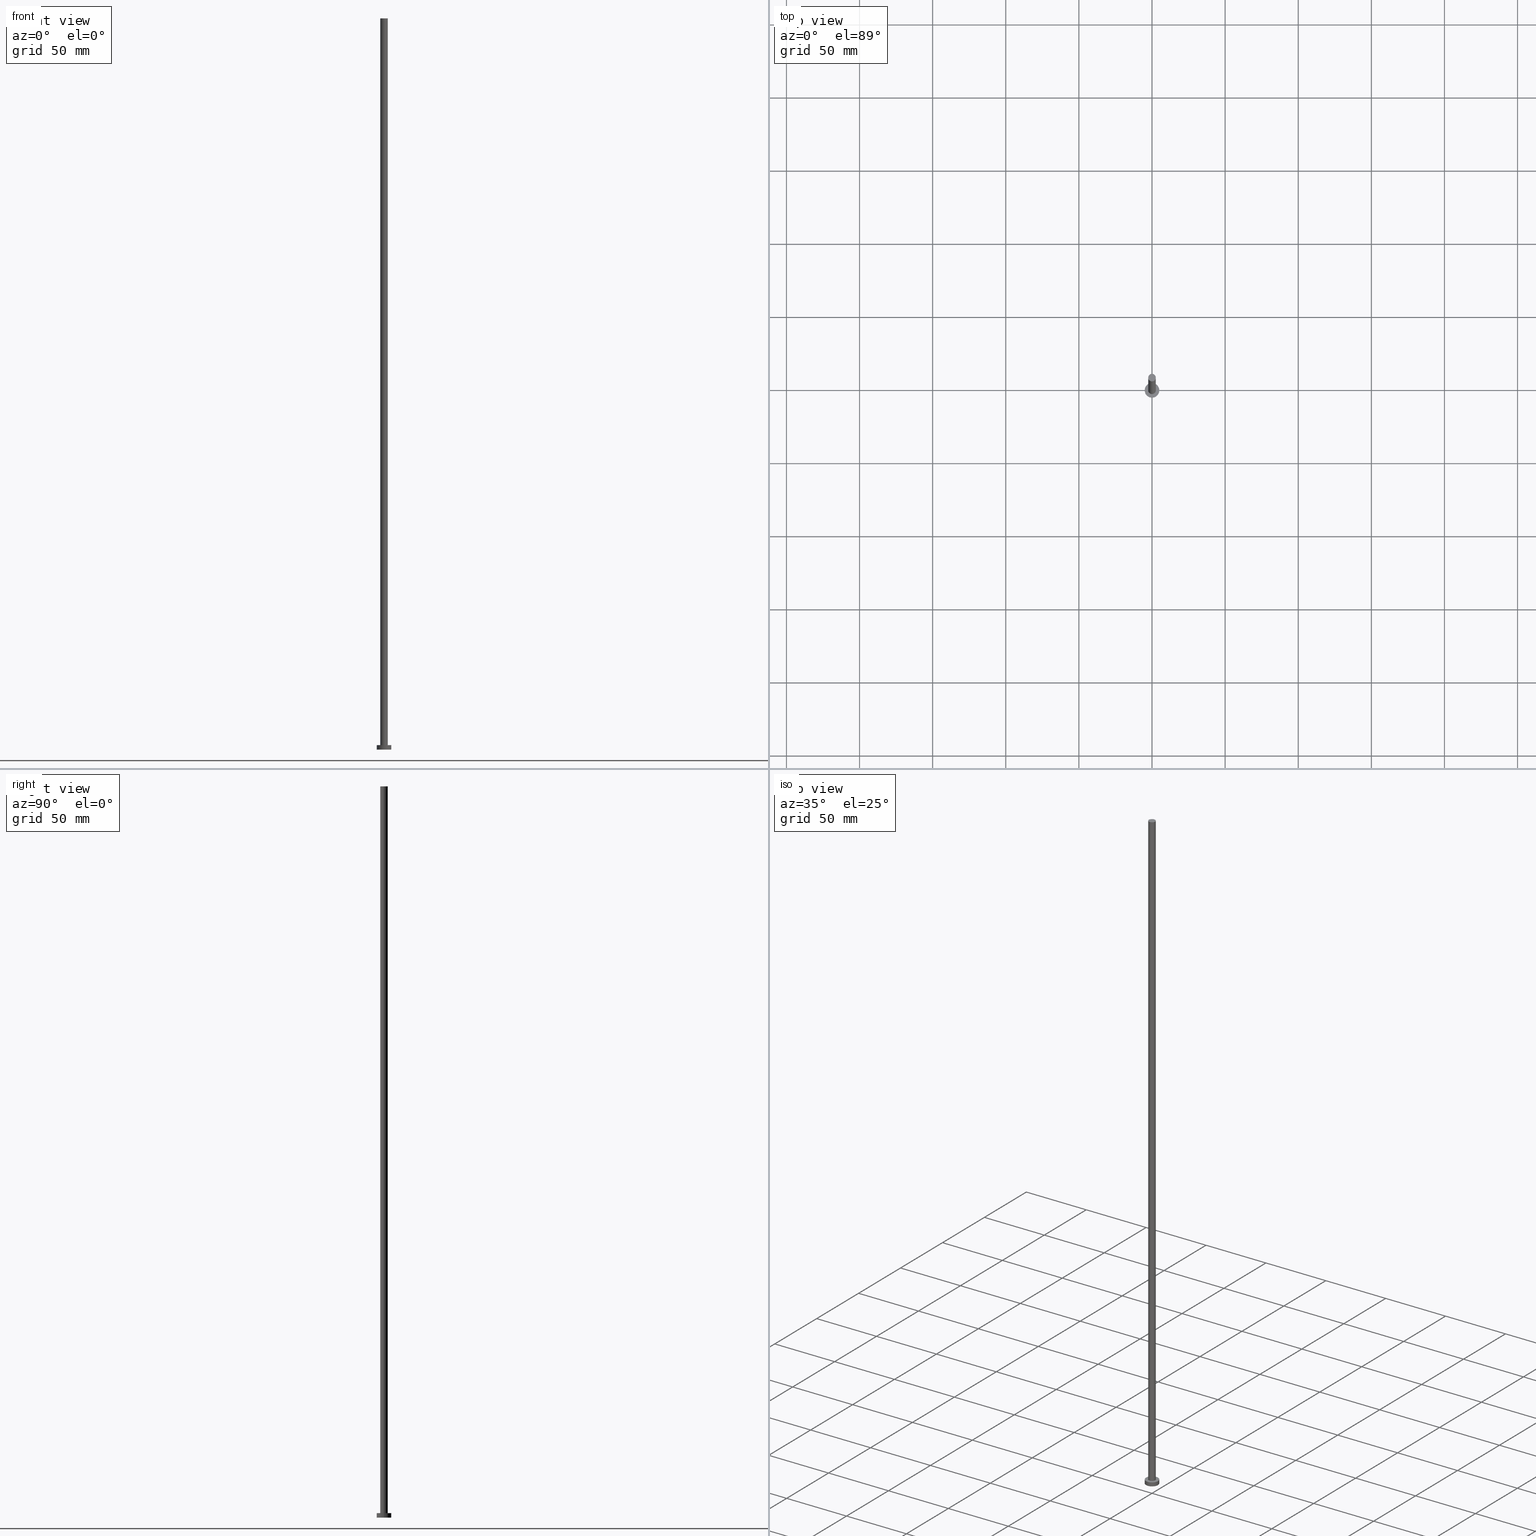
[diagram: canonical four-view strip — front | top / right | iso, engineering-drawing reading convention]
A machine part, canonical four-view strip (front | top / right | iso — engineering-drawing reading convention). The complete STEP part file that produces these views, byte-faithful:
ISO-10303-21;
HEADER;
FILE_DESCRIPTION (( 'STEP AP203' ),
    '1' );
FILE_NAME ('ab43.STEP',
    '2026-02-06T12:40:58',
    ( '' ),
    ( '' ),
    'SwSTEP 2.0',
    'SolidWorks 2019',
    '' );
FILE_SCHEMA (( 'CONFIG_CONTROL_DESIGN' ));
ENDSEC;

DATA;
#1 = ORIENTED_EDGE ( 'NONE', *, *, #49, .T. ) ;
#2 = CIRCLE ( 'NONE', #144, 2.600000000000000089 ) ;
#3 = APPROVAL_PERSON_ORGANIZATION ( #141, #12, #121 ) ;
#4 = DIRECTION ( 'NONE',  ( -0.000000000000000000, -0.000000000000000000, -1.000000000000000000 ) ) ;
#5 = DIRECTION ( 'NONE',  ( 0.000000000000000000, 0.000000000000000000, 1.000000000000000000 ) ) ;
#6 = CARTESIAN_POINT ( 'NONE',  ( 2.600000000000000089, 3.184081677783117698E-16, 500.0000000000000000 ) ) ;
#7 = CIRCLE ( 'NONE', #239, 5.000000000000000000 ) ;
#8 = ADVANCED_FACE ( 'NONE', ( #142 ), #243, .T. ) ;
#9 = CARTESIAN_POINT ( 'NONE',  ( 0.000000000000000000, 0.000000000000000000, 3.000000000000000000 ) ) ;
#10 = DIRECTION ( 'NONE',  ( -0.000000000000000000, -0.000000000000000000, -1.000000000000000000 ) ) ;
#11 = CARTESIAN_POINT ( 'NONE',  ( 0.000000000000000000, 0.000000000000000000, 0.000000000000000000 ) ) ;
#12 = APPROVAL ( #180, 'NEUR�EN�' ) ;
#13 = APPROVAL_ROLE ( '' ) ;
#14 = ORIENTED_EDGE ( 'NONE', *, *, #199, .F. ) ;
#15 = MECHANICAL_CONTEXT ( 'NONE', #209, 'mechanical' ) ;
#16 = PRODUCT_RELATED_PRODUCT_CATEGORY ( 'detail', '', ( #122 ) ) ;
#17 = EDGE_CURVE ( 'NONE', #95, #219, #191, .T. ) ;
#18 = LINE ( 'NONE', #62, #42 ) ;
#19 = DATE_AND_TIME ( #34, #177 ) ;
#20 = DIRECTION ( 'NONE',  ( 1.000000000000000000, 0.000000000000000000, 0.000000000000000000 ) ) ;
#21 = PERSON_AND_ORGANIZATION_ROLE ( 'creator' ) ;
#22 = CARTESIAN_POINT ( 'NONE',  ( 0.000000000000000000, 0.000000000000000000, 500.0000000000000000 ) ) ;
#23 = CARTESIAN_POINT ( 'NONE',  ( 0.000000000000000000, 0.000000000000000000, 3.000000000000000000 ) ) ;
#24 = AXIS2_PLACEMENT_3D ( 'NONE', #179, #58, #138 ) ;
#25 = CC_DESIGN_PERSON_AND_ORGANIZATION_ASSIGNMENT ( #100, #241, ( #210 ) ) ;
#26 = DIRECTION ( 'NONE',  ( -0.000000000000000000, -0.000000000000000000, -1.000000000000000000 ) ) ;
#27 =( LENGTH_UNIT ( ) NAMED_UNIT ( * ) SI_UNIT ( .MILLI., .METRE. ) );
#28 = AXIS2_PLACEMENT_3D ( 'NONE', #9, #164, #20 ) ;
#29 = ORIENTED_EDGE ( 'NONE', *, *, #83, .T. ) ;
#30 = PERSON_AND_ORGANIZATION ( #188, #92 ) ;
#31 = DIRECTION ( 'NONE',  ( 1.000000000000000000, 0.000000000000000000, 0.000000000000000000 ) ) ;
#32 = ORIENTED_EDGE ( 'NONE', *, *, #17, .T. ) ;
#33 = VERTEX_POINT ( 'NONE', #136 ) ;
#34 = CALENDAR_DATE ( 2026, 6, 2 ) ;
#35 = ORIENTED_EDGE ( 'NONE', *, *, #129, .F. ) ;
#36 = COORDINATED_UNIVERSAL_TIME_OFFSET ( 1, 0, .AHEAD. ) ;
#37 = DIRECTION ( 'NONE',  ( -0.000000000000000000, -0.000000000000000000, -1.000000000000000000 ) ) ;
#38 = EDGE_LOOP ( 'NONE', ( #132, #254, #237, #73 ) ) ;
#39 = CARTESIAN_POINT ( 'NONE',  ( -5.000000000000000000, 0.000000000000000000, 3.000000000000000000 ) ) ;
#40 = CALENDAR_DATE ( 2026, 6, 2 ) ;
#41 = DIRECTION ( 'NONE',  ( -0.000000000000000000, -0.000000000000000000, -1.000000000000000000 ) ) ;
#42 = VECTOR ( 'NONE', #37, 1000.000000000000000 ) ;
#43 = DIRECTION ( 'NONE',  ( -1.000000000000000000, 0.000000000000000000, 0.000000000000000000 ) ) ;
#44 =( NAMED_UNIT ( * ) PLANE_ANGLE_UNIT ( ) SI_UNIT ( $, .RADIAN. ) );
#45 = CC_DESIGN_PERSON_AND_ORGANIZATION_ASSIGNMENT ( #203, #21, ( #213 ) ) ;
#46 = PLANE ( 'NONE',  #146 ) ;
#47 = AXIS2_PLACEMENT_3D ( 'NONE', #11, #145, #90 ) ;
#48 = DIRECTION ( 'NONE',  ( -0.000000000000000000, -0.000000000000000000, -1.000000000000000000 ) ) ;
#49 = EDGE_CURVE ( 'NONE', #50, #194, #68, .T. ) ;
#50 = VERTEX_POINT ( 'NONE', #247 ) ;
#51 = LOCAL_TIME ( 13, 40, 58.00000000000000000, #86 ) ;
#52 = EDGE_LOOP ( 'NONE', ( #151, #35, #220, #1 ) ) ;
#53 = ORIENTED_EDGE ( 'NONE', *, *, #183, .F. ) ;
#54 = AXIS2_PLACEMENT_3D ( 'NONE', #216, #218, #31 ) ;
#55 = CARTESIAN_POINT ( 'NONE',  ( 0.000000000000000000, 0.000000000000000000, 500.0000000000000000 ) ) ;
#56 = PERSON_AND_ORGANIZATION_ROLE ( 'classification_officer' ) ;
#57 = CARTESIAN_POINT ( 'NONE',  ( 0.000000000000000000, 0.000000000000000000, 500.0000000000000000 ) ) ;
#58 = DIRECTION ( 'NONE',  ( 0.000000000000000000, 0.000000000000000000, 1.000000000000000000 ) ) ;
#59 = PERSON_AND_ORGANIZATION ( #188, #92 ) ;
#60 = CC_DESIGN_PERSON_AND_ORGANIZATION_ASSIGNMENT ( #30, #118, ( #122 ) ) ;
#61 = FACE_OUTER_BOUND ( 'NONE', #52, .T. ) ;
#62 = CARTESIAN_POINT ( 'NONE',  ( -2.600000000000000089, 0.000000000000000000, 500.0000000000000000 ) ) ;
#63 = DIRECTION ( 'NONE',  ( 1.000000000000000000, 0.000000000000000000, -0.000000000000000000 ) ) ;
#64 = DIRECTION ( 'NONE',  ( 0.000000000000000000, 0.000000000000000000, 1.000000000000000000 ) ) ;
#65 = CC_DESIGN_APPROVAL ( #12, ( #213 ) ) ;
#66 = CARTESIAN_POINT ( 'NONE',  ( 5.000000000000000000, 6.123233995736766282E-16, 3.000000000000000000 ) ) ;
#67 = FACE_BOUND ( 'NONE', #195, .T. ) ;
#68 = CIRCLE ( 'NONE', #28, 2.600000000000000089 ) ;
#69 = ORIENTED_EDGE ( 'NONE', *, *, #49, .F. ) ;
#70 = ORIENTED_EDGE ( 'NONE', *, *, #169, .T. ) ;
#71 =( GEOMETRIC_REPRESENTATION_CONTEXT ( 3 ) GLOBAL_UNCERTAINTY_ASSIGNED_CONTEXT ( ( #147 ) ) GLOBAL_UNIT_ASSIGNED_CONTEXT ( ( #27, #44, #186 ) ) REPRESENTATION_CONTEXT ( 'NONE', 'WORKASPACE' ) );
#72 = EDGE_CURVE ( 'NONE', #219, #95, #7, .T. ) ;
#73 = ORIENTED_EDGE ( 'NONE', *, *, #202, .F. ) ;
#74 = EDGE_LOOP ( 'NONE', ( #53, #70, #29, #108 ) ) ;
#75 = APPROVAL_DATE_TIME ( #19, #93 ) ;
#76 = FACE_OUTER_BOUND ( 'NONE', #149, .T. ) ;
#77 = CC_DESIGN_DATE_AND_TIME_ASSIGNMENT ( #182, #229, ( #173 ) ) ;
#78 = COORDINATED_UNIVERSAL_TIME_OFFSET ( 1, 0, .AHEAD. ) ;
#79 = APPROVAL_PERSON_ORGANIZATION ( #59, #163, #135 ) ;
#80 = CARTESIAN_POINT ( 'NONE',  ( -2.600000000000000089, 0.000000000000000000, 500.0000000000000000 ) ) ;
#81 = PERSON_AND_ORGANIZATION_ROLE ( 'design_supplier' ) ;
#82 = DIRECTION ( 'NONE',  ( 0.000000000000000000, 0.000000000000000000, 1.000000000000000000 ) ) ;
#83 = EDGE_CURVE ( 'NONE', #194, #50, #157, .T. ) ;
#84 = DIRECTION ( 'NONE',  ( 1.000000000000000000, 0.000000000000000000, 0.000000000000000000 ) ) ;
#85 = AXIS2_PLACEMENT_3D ( 'NONE', #105, #41, #184 ) ;
#86 = COORDINATED_UNIVERSAL_TIME_OFFSET ( 1, 0, .AHEAD. ) ;
#87 = VECTOR ( 'NONE', #48, 1000.000000000000000 ) ;
#88 = EDGE_LOOP ( 'NONE', ( #116, #253 ) ) ;
#89 = DATE_AND_TIME ( #246, #94 ) ;
#90 = DIRECTION ( 'NONE',  ( 1.000000000000000000, 0.000000000000000000, 0.000000000000000000 ) ) ;
#91 = VECTOR ( 'NONE', #4, 1000.000000000000000 ) ;
#92 = ORGANIZATION ( 'NEUR�EN�', 'NEUR�EN�', '' ) ;
#93 = APPROVAL ( #117, 'NEUR�EN�' ) ;
#94 = LOCAL_TIME ( 13, 40, 58.00000000000000000, #36 ) ;
#95 = VERTEX_POINT ( 'NONE', #39 ) ;
#96 = COORDINATED_UNIVERSAL_TIME_OFFSET ( 1, 0, .AHEAD. ) ;
#97 = AXIS2_PLACEMENT_3D ( 'NONE', #57, #181, #103 ) ;
#98 = EDGE_CURVE ( 'NONE', #171, #50, #18, .T. ) ;
#99 = DIRECTION ( 'NONE',  ( 0.000000000000000000, 0.000000000000000000, 1.000000000000000000 ) ) ;
#100 = PERSON_AND_ORGANIZATION ( #188, #92 ) ;
#101 = APPROVAL_DATE_TIME ( #104, #12 ) ;
#102 = AXIS2_PLACEMENT_3D ( 'NONE', #134, #222, #127 ) ;
#103 = DIRECTION ( 'NONE',  ( -1.000000000000000000, 0.000000000000000000, 0.000000000000000000 ) ) ;
#104 = DATE_AND_TIME ( #231, #51 ) ;
#105 = CARTESIAN_POINT ( 'NONE',  ( 0.000000000000000000, 0.000000000000000000, 500.0000000000000000 ) ) ;
#106 = DATE_TIME_ROLE ( 'creation_date' ) ;
#107 = DIRECTION ( 'NONE',  ( -0.000000000000000000, -0.000000000000000000, -1.000000000000000000 ) ) ;
#108 = ORIENTED_EDGE ( 'NONE', *, *, #98, .F. ) ;
#109 = AXIS2_PLACEMENT_3D ( 'NONE', #230, #242, #125 ) ;
#110 = PLANE ( 'NONE',  #119 ) ;
#111 = CARTESIAN_POINT ( 'NONE',  ( 2.600000000000000089, 3.184081677783117698E-16, 3.000000000000000000 ) ) ;
#112 = CARTESIAN_POINT ( 'NONE',  ( 0.000000000000000000, 0.000000000000000000, 0.000000000000000000 ) ) ;
#113 = CARTESIAN_POINT ( 'NONE',  ( -5.000000000000000000, 0.000000000000000000, 3.000000000000000000 ) ) ;
#114 = APPROVAL_PERSON_ORGANIZATION ( #198, #93, #13 ) ;
#115 = APPLICATION_PROTOCOL_DEFINITION ( 'international standard', 'config_control_design', 1994, #224 ) ;
#116 = ORIENTED_EDGE ( 'NONE', *, *, #148, .F. ) ;
#117 = APPROVAL_STATUS ( 'not_yet_approved' ) ;
#118 = PERSON_AND_ORGANIZATION_ROLE ( 'design_owner' ) ;
#119 = AXIS2_PLACEMENT_3D ( 'NONE', #112, #64, #249 ) ;
#120 = ADVANCED_FACE ( 'NONE', ( #76 ), #158, .T. ) ;
#121 = APPROVAL_ROLE ( '' ) ;
#122 = PRODUCT ( 'ab43', 'ab43', '', ( #15 ) ) ;
#123 = CARTESIAN_POINT ( 'NONE',  ( -5.000000000000000000, 0.000000000000000000, 0.000000000000000000 ) ) ;
#124 = APPROVAL_DATE_TIME ( #128, #163 ) ;
#125 = DIRECTION ( 'NONE',  ( 1.000000000000000000, 0.000000000000000000, -0.000000000000000000 ) ) ;
#126 = DIRECTION ( 'NONE',  ( 1.000000000000000000, 0.000000000000000000, 0.000000000000000000 ) ) ;
#127 = DIRECTION ( 'NONE',  ( 1.000000000000000000, 0.000000000000000000, 0.000000000000000000 ) ) ;
#128 = DATE_AND_TIME ( #223, #217 ) ;
#129 = EDGE_CURVE ( 'NONE', #171, #238, #2, .T. ) ;
#130 = CARTESIAN_POINT ( 'NONE',  ( 0.000000000000000000, 0.000000000000000000, 3.000000000000000000 ) ) ;
#131 = FACE_OUTER_BOUND ( 'NONE', #38, .T. ) ;
#132 = ORIENTED_EDGE ( 'NONE', *, *, #72, .F. ) ;
#133 = EDGE_LOOP ( 'NONE', ( #174, #192 ) ) ;
#134 = CARTESIAN_POINT ( 'NONE',  ( 0.000000000000000000, 0.000000000000000000, 0.000000000000000000 ) ) ;
#135 = APPROVAL_ROLE ( '' ) ;
#136 = CARTESIAN_POINT ( 'NONE',  ( 5.000000000000000000, 6.123233995736766282E-16, 0.000000000000000000 ) ) ;
#137 = PERSON_AND_ORGANIZATION ( #188, #92 ) ;
#138 = DIRECTION ( 'NONE',  ( 1.000000000000000000, 0.000000000000000000, 0.000000000000000000 ) ) ;
#139 = APPROVAL_STATUS ( 'not_yet_approved' ) ;
#140 = PLANE ( 'NONE',  #109 ) ;
#141 = PERSON_AND_ORGANIZATION ( #188, #92 ) ;
#142 = FACE_OUTER_BOUND ( 'NONE', #74, .T. ) ;
#143 = CYLINDRICAL_SURFACE ( 'NONE', #152, 5.000000000000000000 ) ;
#144 = AXIS2_PLACEMENT_3D ( 'NONE', #55, #245, #126 ) ;
#145 = DIRECTION ( 'NONE',  ( 0.000000000000000000, 0.000000000000000000, 1.000000000000000000 ) ) ;
#146 = AXIS2_PLACEMENT_3D ( 'NONE', #211, #187, #63 ) ;
#147 = UNCERTAINTY_MEASURE_WITH_UNIT (LENGTH_MEASURE( 1.000000000000000082E-05 ), #27, 'distance_accuracy_value', 'NONE');
#148 = EDGE_CURVE ( 'NONE', #155, #33, #214, .T. ) ;
#149 = EDGE_LOOP ( 'NONE', ( #14, #215, #170, #153 ) ) ;
#150 = CC_DESIGN_PERSON_AND_ORGANIZATION_ASSIGNMENT ( #178, #81, ( #213 ) ) ;
#151 = ORIENTED_EDGE ( 'NONE', *, *, #169, .F. ) ;
#152 = AXIS2_PLACEMENT_3D ( 'NONE', #130, #26, #43 ) ;
#153 = ORIENTED_EDGE ( 'NONE', *, *, #148, .T. ) ;
#154 = EDGE_LOOP ( 'NONE', ( #32, #160 ) ) ;
#155 = VERTEX_POINT ( 'NONE', #123 ) ;
#156 = AXIS2_PLACEMENT_3D ( 'NONE', #228, #5, #200 ) ;
#157 = CIRCLE ( 'NONE', #156, 2.600000000000000089 ) ;
#158 = CYLINDRICAL_SURFACE ( 'NONE', #250, 5.000000000000000000 ) ;
#159 = MANIFOLD_SOLID_BREP ( 'P�idat vysunut�m3', #204 ) ;
#160 = ORIENTED_EDGE ( 'NONE', *, *, #72, .T. ) ;
#161 = CYLINDRICAL_SURFACE ( 'NONE', #97, 2.600000000000000089 ) ;
#162 = AXIS2_PLACEMENT_3D ( 'NONE', #22, #82, #166 ) ;
#163 = APPROVAL ( #139, 'NEUR�EN�' ) ;
#164 = DIRECTION ( 'NONE',  ( 0.000000000000000000, 0.000000000000000000, 1.000000000000000000 ) ) ;
#165 = LINE ( 'NONE', #66, #196 ) ;
#166 = DIRECTION ( 'NONE',  ( 1.000000000000000000, 0.000000000000000000, 0.000000000000000000 ) ) ;
#167 = FACE_OUTER_BOUND ( 'NONE', #88, .T. ) ;
#168 = ADVANCED_FACE ( 'NONE', ( #61 ), #161, .T. ) ;
#169 = EDGE_CURVE ( 'NONE', #238, #194, #175, .T. ) ;
#170 = ORIENTED_EDGE ( 'NONE', *, *, #202, .T. ) ;
#171 = VERTEX_POINT ( 'NONE', #80 ) ;
#172 = ADVANCED_FACE ( 'NONE', ( #225 ), #140, .T. ) ;
#173 = SECURITY_CLASSIFICATION ( '', '', #201 ) ;
#174 = ORIENTED_EDGE ( 'NONE', *, *, #129, .T. ) ;
#175 = LINE ( 'NONE', #6, #91 ) ;
#176 = CC_DESIGN_DATE_AND_TIME_ASSIGNMENT ( #89, #106, ( #210 ) ) ;
#177 = LOCAL_TIME ( 13, 40, 58.00000000000000000, #96 ) ;
#178 = PERSON_AND_ORGANIZATION ( #188, #92 ) ;
#179 = CARTESIAN_POINT ( 'NONE',  ( 0.000000000000000000, 0.000000000000000000, 3.000000000000000000 ) ) ;
#180 = APPROVAL_STATUS ( 'not_yet_approved' ) ;
#181 = DIRECTION ( 'NONE',  ( -0.000000000000000000, -0.000000000000000000, -1.000000000000000000 ) ) ;
#182 = DATE_AND_TIME ( #40, #197 ) ;
#183 = EDGE_CURVE ( 'NONE', #238, #171, #244, .T. ) ;
#184 = DIRECTION ( 'NONE',  ( -1.000000000000000000, 0.000000000000000000, 0.000000000000000000 ) ) ;
#185 = CARTESIAN_POINT ( 'NONE',  ( 2.600000000000000089, 3.184081677783117698E-16, 500.0000000000000000 ) ) ;
#186 =( NAMED_UNIT ( * ) SI_UNIT ( $, .STERADIAN. ) SOLID_ANGLE_UNIT ( ) );
#187 = DIRECTION ( 'NONE',  ( 0.000000000000000000, 0.000000000000000000, 1.000000000000000000 ) ) ;
#188 = PERSON ( 'NEUR�EN�', 'NEUR�EN�', 'NEUR�EN�', ('NEUR�EN�'), ('NEUR�EN�'), ('NEUR�EN�') ) ;
#189 = DESIGN_CONTEXT ( 'detailed design', #224, 'design' ) ;
#190 = CARTESIAN_POINT ( 'NONE',  ( 5.000000000000000000, 6.123233995736766282E-16, 3.000000000000000000 ) ) ;
#191 = CIRCLE ( 'NONE', #24, 5.000000000000000000 ) ;
#192 = ORIENTED_EDGE ( 'NONE', *, *, #183, .T. ) ;
#193 = ADVANCED_BREP_SHAPE_REPRESENTATION ( 'ab43', ( #159, #54 ), #71 ) ;
#194 = VERTEX_POINT ( 'NONE', #111 ) ;
#195 = EDGE_LOOP ( 'NONE', ( #69, #205 ) ) ;
#196 = VECTOR ( 'NONE', #10, 1000.000000000000000 ) ;
#197 = LOCAL_TIME ( 13, 40, 58.00000000000000000, #78 ) ;
#198 = PERSON_AND_ORGANIZATION ( #188, #92 ) ;
#199 = EDGE_CURVE ( 'NONE', #219, #33, #165, .T. ) ;
#200 = DIRECTION ( 'NONE',  ( 1.000000000000000000, 0.000000000000000000, 0.000000000000000000 ) ) ;
#201 = SECURITY_CLASSIFICATION_LEVEL ( 'unclassified' ) ;
#202 = EDGE_CURVE ( 'NONE', #95, #155, #234, .T. ) ;
#203 = PERSON_AND_ORGANIZATION ( #188, #92 ) ;
#204 = CLOSED_SHELL ( 'NONE', ( #8, #236, #120, #221, #207, #168, #172 ) ) ;
#205 = ORIENTED_EDGE ( 'NONE', *, *, #83, .F. ) ;
#206 = DIRECTION ( 'NONE',  ( -1.000000000000000000, 0.000000000000000000, 0.000000000000000000 ) ) ;
#207 = ADVANCED_FACE ( 'NONE', ( #167 ), #110, .F. ) ;
#208 = SHAPE_DEFINITION_REPRESENTATION ( #227, #193 ) ;
#209 = APPLICATION_CONTEXT ( 'configuration controlled 3d designs of mechanical parts and assemblies' ) ;
#210 = PRODUCT_DEFINITION ( 'NEZN�M�', '', #213, #189 ) ;
#211 = CARTESIAN_POINT ( 'NONE',  ( 0.000000000000000000, 0.000000000000000000, 3.000000000000000000 ) ) ;
#212 = FACE_OUTER_BOUND ( 'NONE', #154, .T. ) ;
#213 = PRODUCT_DEFINITION_FORMATION_WITH_SPECIFIED_SOURCE ( 'LIBOVOLN�', '', #122, .NOT_KNOWN. ) ;
#214 = CIRCLE ( 'NONE', #102, 5.000000000000000000 ) ;
#215 = ORIENTED_EDGE ( 'NONE', *, *, #17, .F. ) ;
#216 = CARTESIAN_POINT ( 'NONE',  ( 0.000000000000000000, 0.000000000000000000, 0.000000000000000000 ) ) ;
#217 = LOCAL_TIME ( 13, 40, 58.00000000000000000, #226 ) ;
#218 = DIRECTION ( 'NONE',  ( 0.000000000000000000, 0.000000000000000000, 1.000000000000000000 ) ) ;
#219 = VERTEX_POINT ( 'NONE', #190 ) ;
#220 = ORIENTED_EDGE ( 'NONE', *, *, #98, .T. ) ;
#221 = ADVANCED_FACE ( 'NONE', ( #67, #212 ), #46, .T. ) ;
#222 = DIRECTION ( 'NONE',  ( 0.000000000000000000, 0.000000000000000000, 1.000000000000000000 ) ) ;
#223 = CALENDAR_DATE ( 2026, 6, 2 ) ;
#224 = APPLICATION_CONTEXT ( 'configuration controlled 3d designs of mechanical parts and assemblies' ) ;
#225 = FACE_OUTER_BOUND ( 'NONE', #133, .T. ) ;
#226 = COORDINATED_UNIVERSAL_TIME_OFFSET ( 1, 0, .AHEAD. ) ;
#227 = PRODUCT_DEFINITION_SHAPE ( 'NONE', 'NONE',  #210 ) ;
#228 = CARTESIAN_POINT ( 'NONE',  ( 0.000000000000000000, 0.000000000000000000, 3.000000000000000000 ) ) ;
#229 = DATE_TIME_ROLE ( 'classification_date' ) ;
#230 = CARTESIAN_POINT ( 'NONE',  ( 0.000000000000000000, 0.000000000000000000, 500.0000000000000000 ) ) ;
#231 = CALENDAR_DATE ( 2026, 6, 2 ) ;
#232 = CC_DESIGN_SECURITY_CLASSIFICATION ( #173, ( #213 ) ) ;
#233 = CC_DESIGN_PERSON_AND_ORGANIZATION_ASSIGNMENT ( #137, #56, ( #173 ) ) ;
#234 = LINE ( 'NONE', #113, #87 ) ;
#235 = APPLICATION_PROTOCOL_DEFINITION ( 'international standard', 'config_control_design', 1994, #209 ) ;
#236 = ADVANCED_FACE ( 'NONE', ( #131 ), #143, .T. ) ;
#237 = ORIENTED_EDGE ( 'NONE', *, *, #248, .T. ) ;
#238 = VERTEX_POINT ( 'NONE', #185 ) ;
#239 = AXIS2_PLACEMENT_3D ( 'NONE', #23, #99, #84 ) ;
#240 = CARTESIAN_POINT ( 'NONE',  ( 0.000000000000000000, 0.000000000000000000, 3.000000000000000000 ) ) ;
#241 = PERSON_AND_ORGANIZATION_ROLE ( 'creator' ) ;
#242 = DIRECTION ( 'NONE',  ( 0.000000000000000000, 0.000000000000000000, 1.000000000000000000 ) ) ;
#243 = CYLINDRICAL_SURFACE ( 'NONE', #85, 2.600000000000000089 ) ;
#244 = CIRCLE ( 'NONE', #162, 2.600000000000000089 ) ;
#245 = DIRECTION ( 'NONE',  ( 0.000000000000000000, 0.000000000000000000, 1.000000000000000000 ) ) ;
#246 = CALENDAR_DATE ( 2026, 6, 2 ) ;
#247 = CARTESIAN_POINT ( 'NONE',  ( -2.600000000000000089, 0.000000000000000000, 3.000000000000000000 ) ) ;
#248 = EDGE_CURVE ( 'NONE', #33, #155, #252, .T. ) ;
#249 = DIRECTION ( 'NONE',  ( 1.000000000000000000, 0.000000000000000000, -0.000000000000000000 ) ) ;
#250 = AXIS2_PLACEMENT_3D ( 'NONE', #240, #107, #206 ) ;
#251 = CC_DESIGN_APPROVAL ( #93, ( #210 ) ) ;
#252 = CIRCLE ( 'NONE', #47, 5.000000000000000000 ) ;
#253 = ORIENTED_EDGE ( 'NONE', *, *, #248, .F. ) ;
#254 = ORIENTED_EDGE ( 'NONE', *, *, #199, .T. ) ;
#255 = CC_DESIGN_APPROVAL ( #163, ( #173 ) ) ;
ENDSEC;
END-ISO-10303-21;
